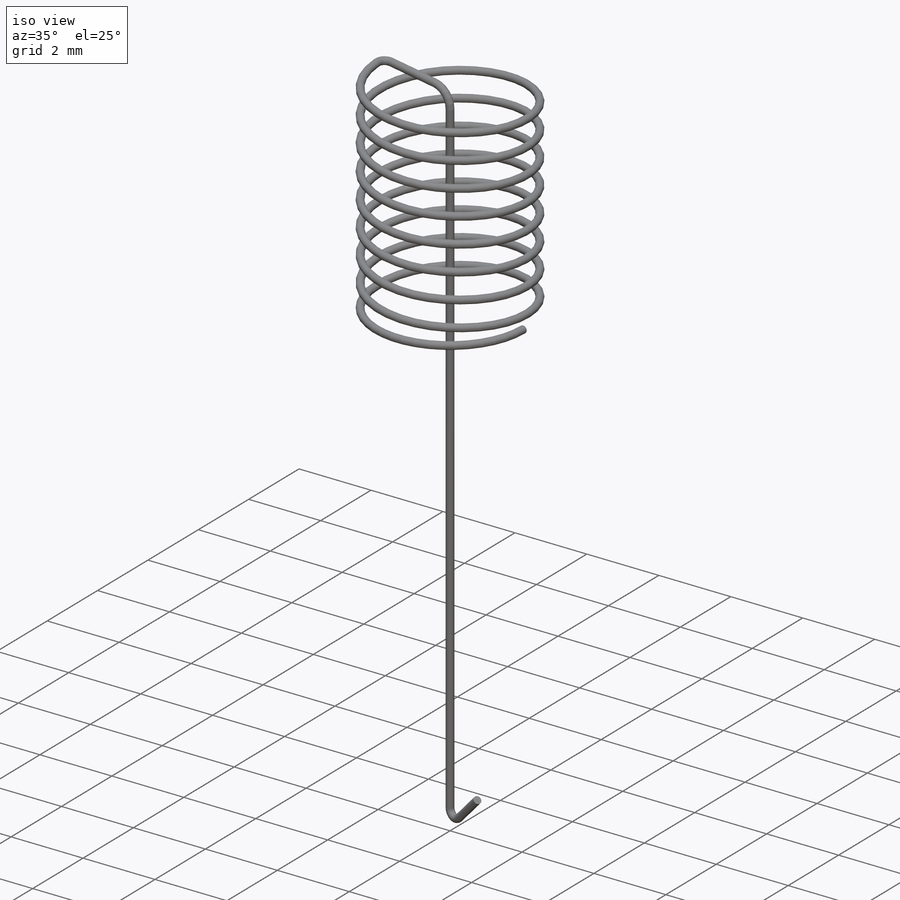
[diagram: iso view]
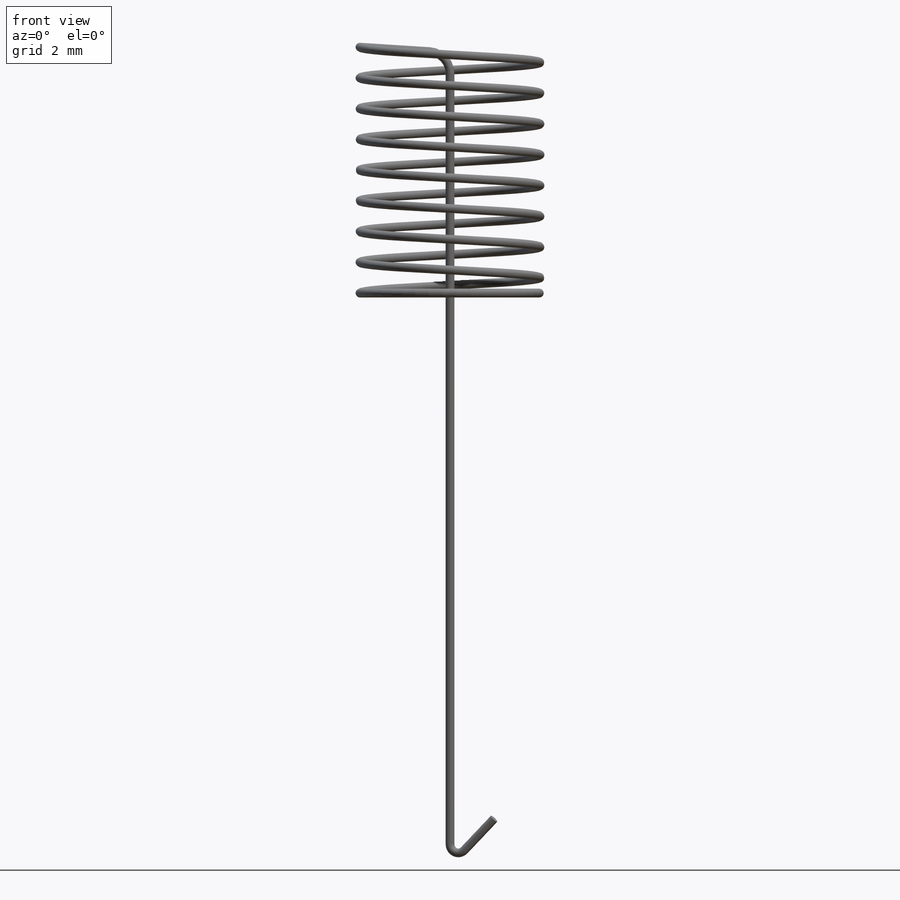
[diagram: front view]
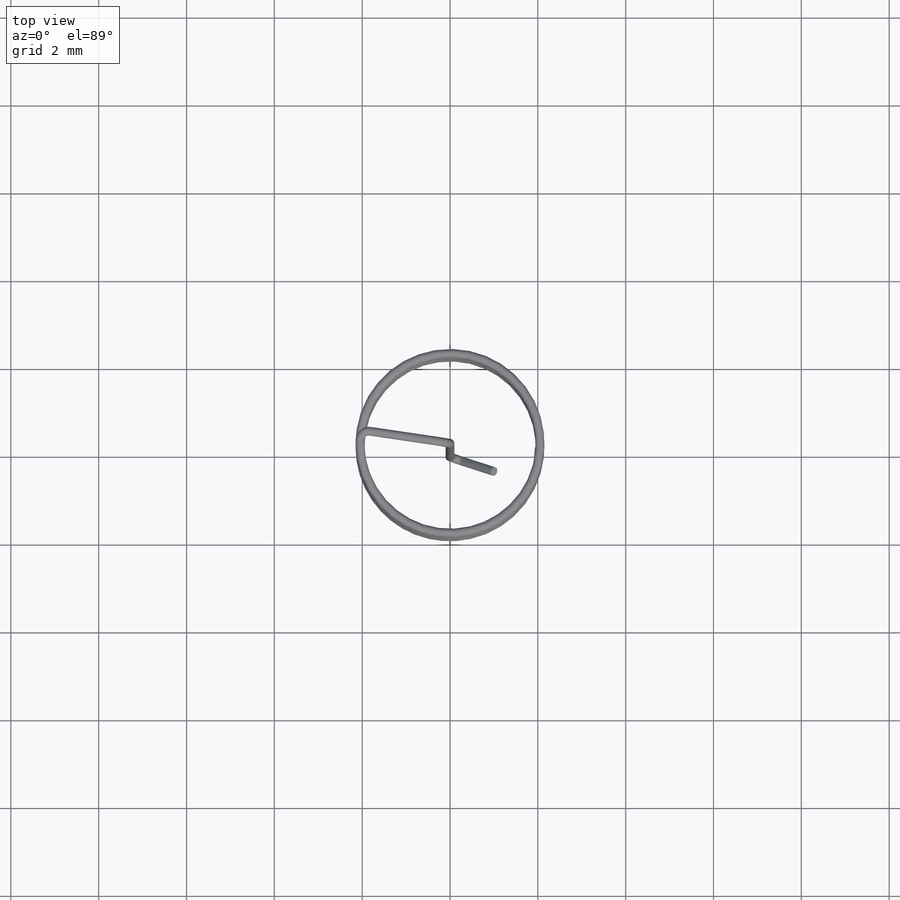
[diagram: top view]
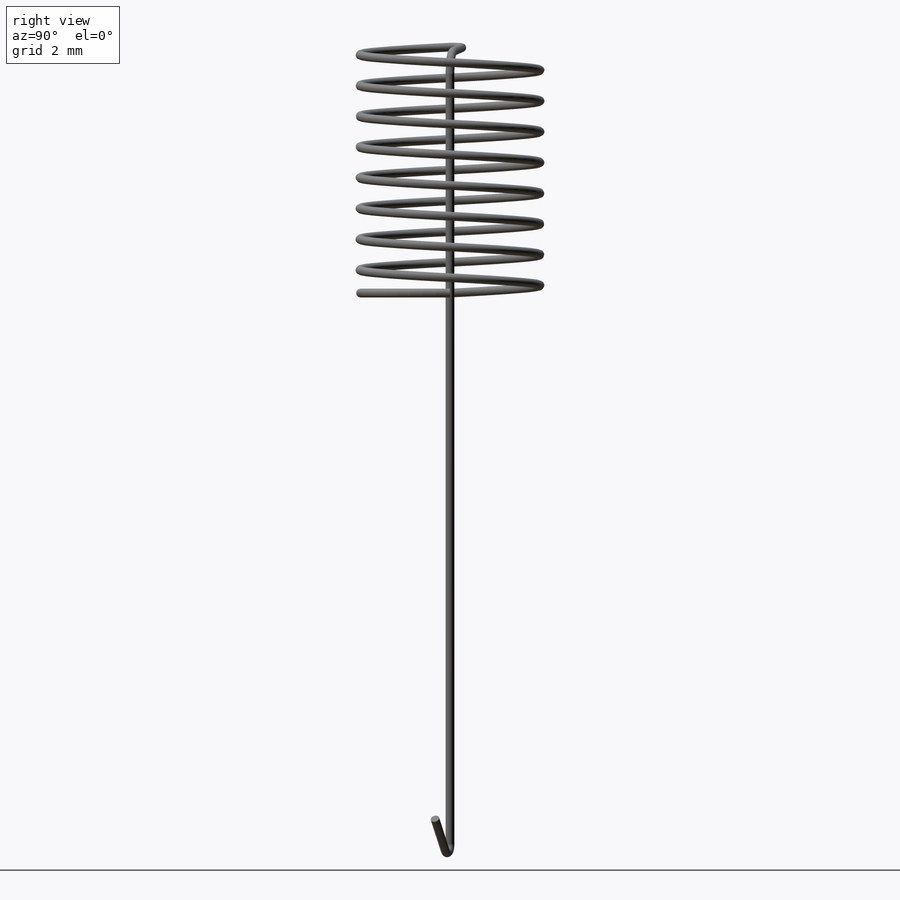
[diagram: right view]
SOLIDWORKS PART (.sldprt)
format: sldprt  version: not decoded by parser v0  size: 476,160 bytes
history: native  units: mm
features: sketch x6, sweep x3, plane x2, material x1, helix x1 (+12 scaffold rows collapsed)
feature tree (25):
  scaffold x12  (default folders/planes/origin — collapsed)
  material  "Stainless Steel (ferritic)"
  sketch  "Sketch1"  dims[D1=4.1mm]
  helix  "Helix/Spiral1"  Pitch=5.6mm
  plane  "Plane1"
  sketch  "Sketch3"  dims[D1=0.2mm]
  sweep  "Sweep1"
  sketch  "3DSketch6"  dims[c1.D1=0.5mm c1.D2=0.5mm c1.D3=0.5mm c2.D2=0.5mm c2.D3=1.0mm c3.D3=0.5mm c3.D4=0.2mm c3.D5=0.25mm c4.D5=0.2mm c4.D1=20.0mm c4.D2=1.5mm c4.D6=0.3mm c4.D7=~1.428666mm c4.D8=2.0mm c5.D7=2.0mm c6.D7=45.0deg c6.D8=5.0mm]
  sketch  "Sketch5"  dims[D1=0.2mm]
  sweep  "Sweep5"
  sketch  "Sketch7"  dims[D1=2.05mm]
  sketch  "Sketch8"  dims[D1=0.2mm]
  sweep  "Sweep6"
  plane  "Plane2"  Offset=6mm
decode coverage: 7 of 10 modeling features carry decoded parameters
note: ~ marks probable driven/reference dimensions
note: suppression state not decoded; provenance and decode notes live in map.json
